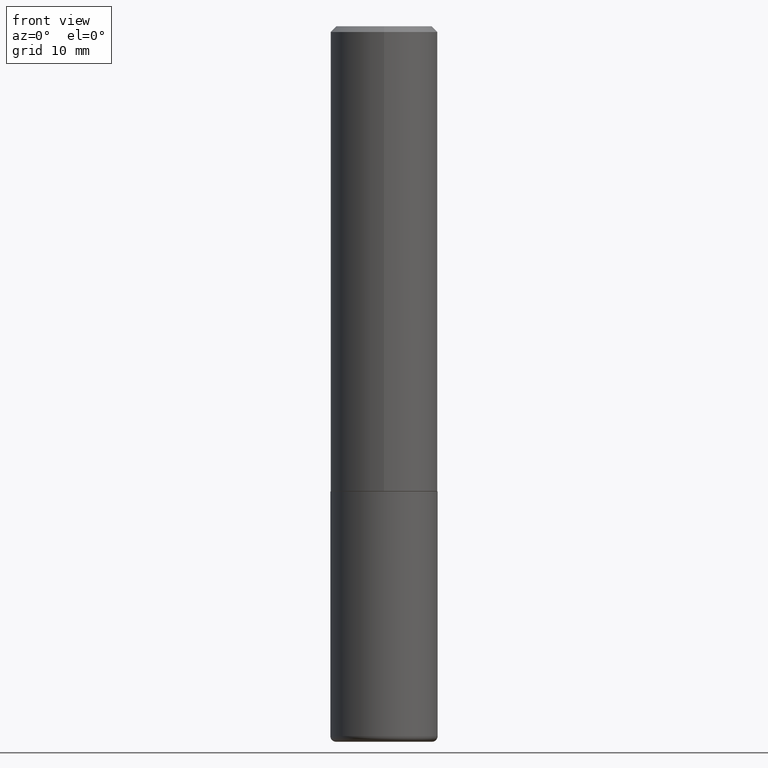
[diagram: clean part render]
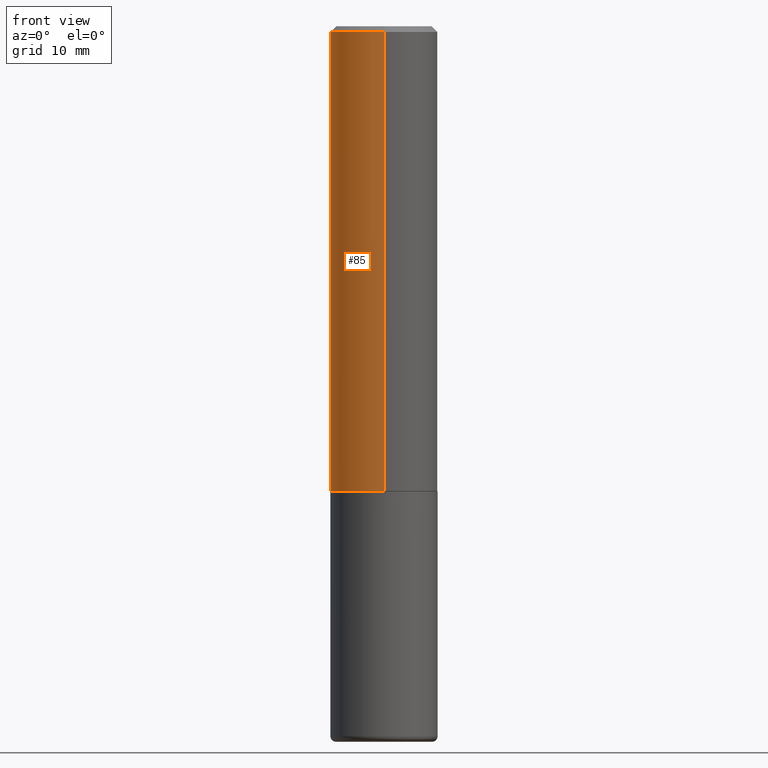
[diagram: same view with one face highlighted and labeled with its STEP entity id]
A machine part, front view. The second image highlights one B-rep face of the part: STEP entity #85.
In plain terms, the highlighted cylindrical surface (partial cylindrical patch) has radius 4.7625 mm, axis along (-0, 0, 1).
Its self-contained STEP definition (entity closure, byte-faithful):
#3 = AXIS2_PLACEMENT_3D ( 'NONE', #298, #412, #127 ) ;
#10 = ORIENTED_EDGE ( 'NONE', *, *, #156, .F. ) ;
#17 = CARTESIAN_POINT ( 'NONE',  ( -1.309305502066136748E-15, -0.1875000000000058842, -1.623999999999999666 ) ) ;
#22 = VERTEX_POINT ( 'NONE', #152 ) ;
#24 = VERTEX_POINT ( 'NONE', #69 ) ;
#57 = VECTOR ( 'NONE', #161, 39.37007874015748143 ) ;
#69 = CARTESIAN_POINT ( 'NONE',  ( 1.332267629550208753E-15, 0.1874999999999945599, -1.624000000000000776 ) ) ;
#79 = AXIS2_PLACEMENT_3D ( 'NONE', #151, #118, #88 ) ;
#85 = ADVANCED_FACE ( 'NONE', ( #209 ), #215, .T. ) ;
#88 = DIRECTION ( 'NONE',  ( -6.982962677686265922E-15, -1.000000000000000000, 2.913971193241877216E-15 ) ) ;
#118 = DIRECTION ( 'NONE',  ( -2.444750471327062302E-29, 3.492510035244989057E-15, 1.000000000000000000 ) ) ;
#119 = ORIENTED_EDGE ( 'NONE', *, *, #213, .T. ) ;
#127 = DIRECTION ( 'NONE',  ( -6.982962677686265922E-15, -1.000000000000000000, 3.483106191921935160E-15 ) ) ;
#151 = CARTESIAN_POINT ( 'NONE',  ( 3.970274765435149780E-29, -5.671836297237862859E-15, -1.624000000000000110 ) ) ;
#152 = CARTESIAN_POINT ( 'NONE',  ( -1.286343374582161576E-15, -0.1875000000000000833, -0.01999999999999938979 ) ) ;
#156 = EDGE_CURVE ( 'NONE', #362, #22, #255, .T. ) ;
#161 = DIRECTION ( 'NONE',  ( -2.444750471327062583E-29, 3.492510035244989057E-15, 1.000000000000000000 ) ) ;
#168 = EDGE_CURVE ( 'NONE', #24, #362, #194, .T. ) ;
#174 = DIRECTION ( 'NONE',  ( -6.982962677686266711E-15, -1.000000000000000000, 3.492510035244989451E-15 ) ) ;
#186 = DIRECTION ( 'NONE',  ( -2.444750471327062302E-29, 3.492510035244989057E-15, 1.000000000000000000 ) ) ;
#194 = LINE ( 'NONE', #415, #57 ) ;
#209 = FACE_OUTER_BOUND ( 'NONE', #323, .T. ) ;
#213 = EDGE_CURVE ( 'NONE', #24, #314, #387, .T. ) ;
#215 = CYLINDRICAL_SURFACE ( 'NONE', #232, 0.1875000000000001110 ) ;
#222 = LINE ( 'NONE', #249, #406 ) ;
#232 = AXIS2_PLACEMENT_3D ( 'NONE', #369, #186, #174 ) ;
#249 = CARTESIAN_POINT ( 'NONE',  ( -1.309305502066175797E-15, -0.1875000000000001110, 6.548456316084358919E-16 ) ) ;
#255 = CIRCLE ( 'NONE', #3, 0.1875000000000000278 ) ;
#280 = EDGE_CURVE ( 'NONE', #314, #22, #222, .T. ) ;
#298 = CARTESIAN_POINT ( 'NONE',  ( 4.889500942654134974E-31, -6.985020070489991672E-17, -0.02000000000000004205 ) ) ;
#314 = VERTEX_POINT ( 'NONE', #17 ) ;
#323 = EDGE_LOOP ( 'NONE', ( #375, #119, #365, #10 ) ) ;
#350 = DIRECTION ( 'NONE',  ( -2.444750471327062583E-29, 3.492510035244989057E-15, 1.000000000000000000 ) ) ;
#362 = VERTEX_POINT ( 'NONE', #409 ) ;
#365 = ORIENTED_EDGE ( 'NONE', *, *, #280, .T. ) ;
#369 = CARTESIAN_POINT ( 'NONE',  ( 0.000000000000000000, 0.000000000000000000, 0.000000000000000000 ) ) ;
#375 = ORIENTED_EDGE ( 'NONE', *, *, #168, .F. ) ;
#387 = CIRCLE ( 'NONE', #79, 0.1875000000000002220 ) ;
#406 = VECTOR ( 'NONE', #350, 39.37007874015748143 ) ;
#409 = CARTESIAN_POINT ( 'NONE',  ( 1.309305502066175600E-15, 0.1874999999999999445, -0.02000000000000069431 ) ) ;
#412 = DIRECTION ( 'NONE',  ( -2.444750471327062302E-29, 3.492510035244989057E-15, 1.000000000000000000 ) ) ;
#415 = CARTESIAN_POINT ( 'NONE',  ( 1.332267629550188440E-15, 0.1875000000000001110, -6.548456316084358919E-16 ) ) ;